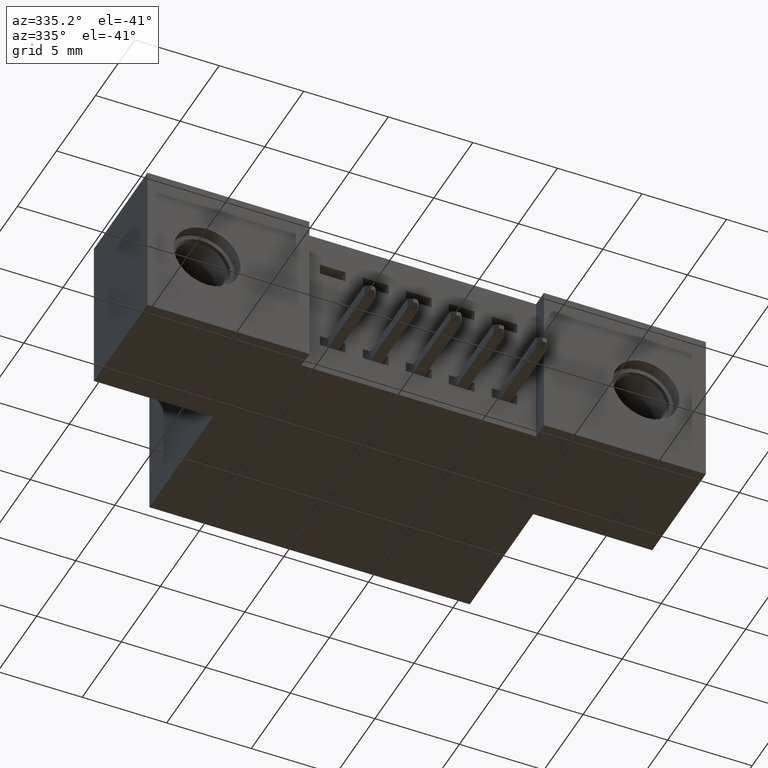
[diagram: clean part render]
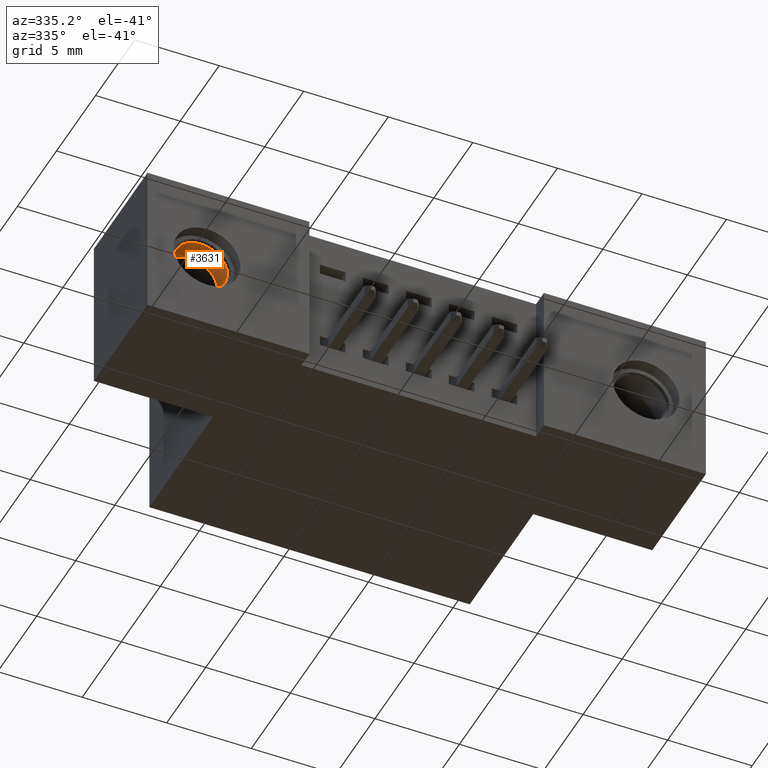
[diagram: same view with one face highlighted and labeled with its STEP entity id]
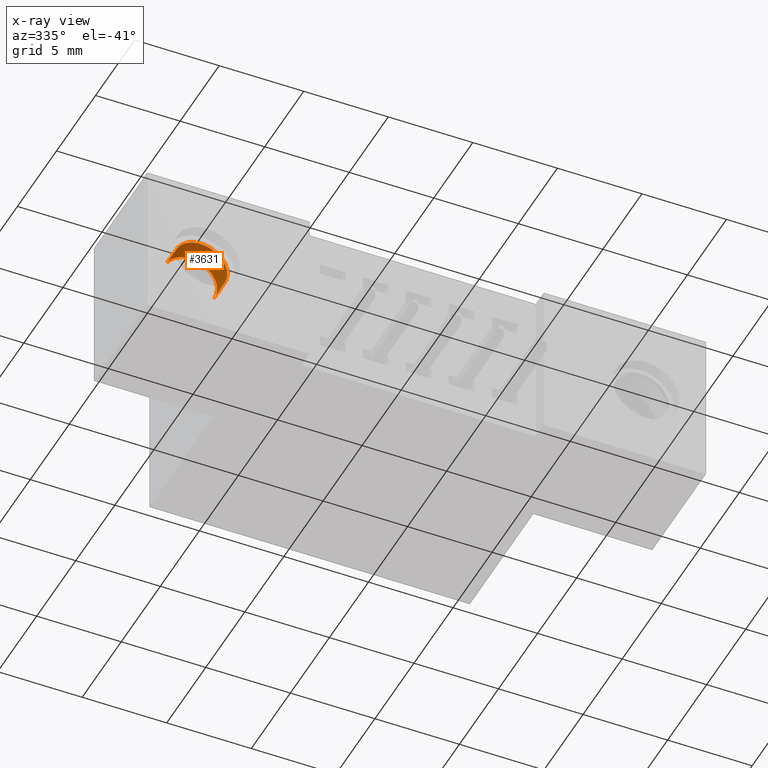
[diagram: x-ray of the same camera — body ghosted, the highlighted face saturated]
A machine part, auxiliary view. The second image highlights one B-rep face of the part: STEP entity #3631.
The next image is the same camera in x-ray: the body ghosted, the highlighted face saturated — about 0% of this face is hidden behind the body in this view.
In plain terms, the highlighted cylindrical surface (edge-blend (fillet) strip) has radius 1.5875 mm, axis along (-0, -1, -0).
Its self-contained STEP definition (entity closure, byte-faithful):
#11 = DIRECTION ( 'NONE',  ( -5.968164126255291300E-016, 1.000000000000000000, -4.048957226368542800E-017 ) ) ;
#261 = AXIS2_PLACEMENT_3D ( 'NONE', #5634, #11, #4276 ) ;
#413 = LINE ( 'NONE', #1831, #3967 ) ;
#576 = CARTESIAN_POINT ( 'NONE',  ( 0.0000000000000000000, 0.2349999999999997100, 0.0000000000000000000 ) ) ;
#897 = EDGE_LOOP ( 'NONE', ( #4318, #4464, #7394, #4331 ) ) ;
#1222 = CARTESIAN_POINT ( 'NONE',  ( -6.938893903907228400E-018, 0.1800000000000000500, 0.06250000000000000000 ) ) ;
#1409 = VECTOR ( 'NONE', #7599, 39.37007874015748100 ) ;
#1831 = CARTESIAN_POINT ( 'NONE',  ( 1.459293639857818400E-017, 0.1800000000000000500, -0.06250000000000000000 ) ) ;
#1837 = EDGE_CURVE ( 'NONE', #8931, #5467, #6596, .T. ) ;
#1934 = EDGE_CURVE ( 'NONE', #5918, #3569, #413, .T. ) ;
#2076 = AXIS2_PLACEMENT_3D ( 'NONE', #576, #3767, #5833 ) ;
#2405 = CIRCLE ( 'NONE', #2076, 0.06250000000000000000 ) ;
#2523 = FACE_OUTER_BOUND ( 'NONE', #897, .T. ) ;
#2556 = EDGE_CURVE ( 'NONE', #5467, #3569, #2405, .T. ) ;
#2634 = CARTESIAN_POINT ( 'NONE',  ( -6.938893903907228400E-018, 0.1828994949366117300, 0.06250000000000000000 ) ) ;
#2915 = CARTESIAN_POINT ( 'NONE',  ( -2.684748031871009100E-018, 0.2349999999999997100, -0.06250000000000000000 ) ) ;
#3145 = CARTESIAN_POINT ( 'NONE',  ( 0.0000000000000000000, 0.1828994949366117300, 0.0000000000000000000 ) ) ;
#3569 = VERTEX_POINT ( 'NONE', #2915 ) ;
#3630 = CIRCLE ( 'NONE', #4988, 0.06250000000000000000 ) ;
#3631 = ADVANCED_FACE ( 'NONE', ( #2523 ), #5853, .F. ) ;
#3767 = DIRECTION ( 'NONE',  ( -5.968164126255291300E-016, 1.000000000000000000, -4.048957226368561900E-017 ) ) ;
#3804 = DIRECTION ( 'NONE',  ( -1.110223024625156500E-016, 0.0000000000000000000, 1.000000000000000000 ) ) ;
#3895 = CARTESIAN_POINT ( 'NONE',  ( -6.938893903907228400E-018, 0.2349999999999997100, 0.06250000000000000000 ) ) ;
#3967 = VECTOR ( 'NONE', #4242, 39.37007874015748100 ) ;
#4242 = DIRECTION ( 'NONE',  ( -5.968164126255291300E-016, 1.000000000000000000, -4.048957226368542800E-017 ) ) ;
#4276 = DIRECTION ( 'NONE',  ( -1.110223024625156500E-016, 0.0000000000000000000, 1.000000000000000000 ) ) ;
#4318 = ORIENTED_EDGE ( 'NONE', *, *, #1934, .F. ) ;
#4331 = ORIENTED_EDGE ( 'NONE', *, *, #2556, .T. ) ;
#4464 = ORIENTED_EDGE ( 'NONE', *, *, #8180, .T. ) ;
#4988 = AXIS2_PLACEMENT_3D ( 'NONE', #3145, #7798, #3804 ) ;
#5467 = VERTEX_POINT ( 'NONE', #3895 ) ;
#5634 = CARTESIAN_POINT ( 'NONE',  ( 0.0000000000000000000, 0.1800000000000000500, 0.0000000000000000000 ) ) ;
#5833 = DIRECTION ( 'NONE',  ( -1.110223024625156500E-016, 0.0000000000000000000, 1.000000000000000000 ) ) ;
#5853 = CYLINDRICAL_SURFACE ( 'NONE', #261, 0.06250000000000000000 ) ;
#5918 = VERTEX_POINT ( 'NONE', #6244 ) ;
#6244 = CARTESIAN_POINT ( 'NONE',  ( -2.684748031870989100E-018, 0.1828994949366117300, -0.06250000000000000000 ) ) ;
#6596 = LINE ( 'NONE', #1222, #1409 ) ;
#7394 = ORIENTED_EDGE ( 'NONE', *, *, #1837, .T. ) ;
#7599 = DIRECTION ( 'NONE',  ( -5.968164126255291300E-016, 1.000000000000000000, -4.048957226368542800E-017 ) ) ;
#7798 = DIRECTION ( 'NONE',  ( 5.968164126255291300E-016, -1.000000000000000000, 4.048957226368561900E-017 ) ) ;
#8180 = EDGE_CURVE ( 'NONE', #5918, #8931, #3630, .T. ) ;
#8931 = VERTEX_POINT ( 'NONE', #2634 ) ;